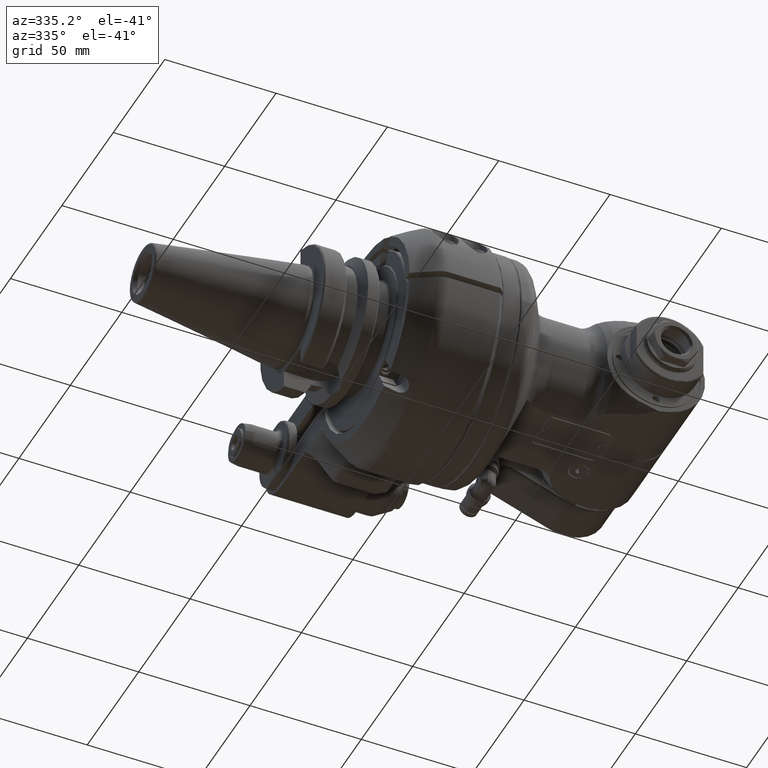
[diagram: clean part render]
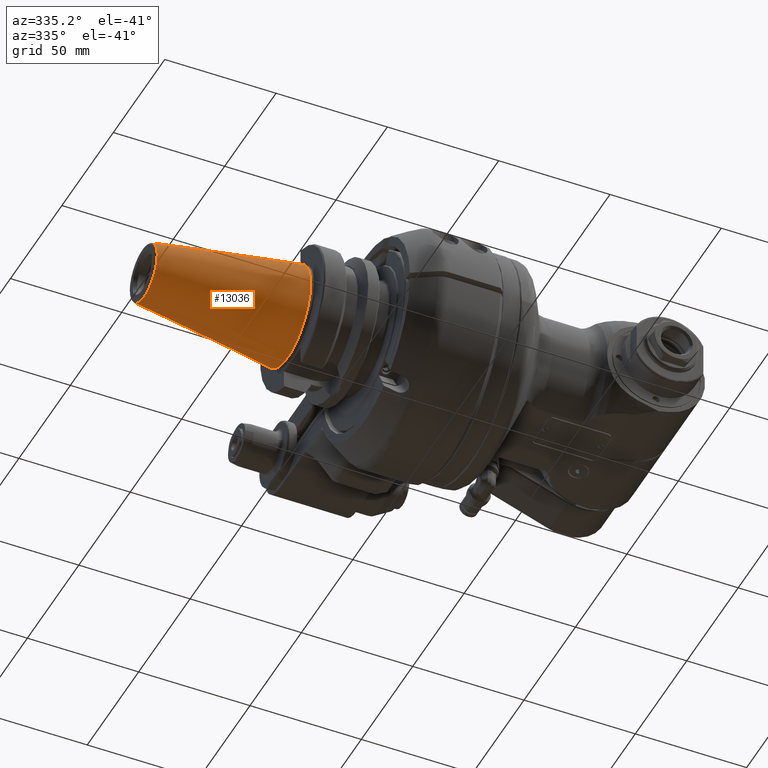
[diagram: same view with one face highlighted and labeled with its STEP entity id]
A machine part, auxiliary view. The second image highlights one B-rep face of the part: STEP entity #13036.
In plain terms, the highlighted conical surface has half-angle 8.297 deg.
Its self-contained STEP definition (entity closure, byte-faithful):
#783=CONICAL_SURFACE('',#14417,17.51864715413,0.144812411498922);
#1472=LINE('',#23628,#2325);
#2325=VECTOR('',#17676,17.51864715413);
#3338=FACE_OUTER_BOUND('',#4225,.T.);
#4225=EDGE_LOOP('',(#11264,#11265,#11266,#11267,#11268));
#4945=CIRCLE('',#14415,22.225);
#4946=CIRCLE('',#14416,22.225);
#4947=CIRCLE('',#14418,12.81229430825);
#6063=VERTEX_POINT('',#23621);
#6064=VERTEX_POINT('',#23622);
#6065=VERTEX_POINT('',#23627);
#7835=EDGE_CURVE('',#6063,#6064,#4945,.T.);
#7836=EDGE_CURVE('',#6064,#6063,#4946,.T.);
#7838=EDGE_CURVE('',#6064,#6065,#1472,.T.);
#7839=EDGE_CURVE('',#6065,#6065,#4947,.T.);
#11264=ORIENTED_EDGE('',*,*,#7835,.F.);
#11265=ORIENTED_EDGE('',*,*,#7836,.F.);
#11266=ORIENTED_EDGE('',*,*,#7838,.T.);
#11267=ORIENTED_EDGE('',*,*,#7839,.F.);
#11268=ORIENTED_EDGE('',*,*,#7838,.F.);
#13036=ADVANCED_FACE('',(#3338),#783,.T.);
#14415=AXIS2_PLACEMENT_3D('',#23623,#17669,#17670);
#14416=AXIS2_PLACEMENT_3D('',#23624,#17671,#17672);
#14417=AXIS2_PLACEMENT_3D('',#23626,#17674,#17675);
#14418=AXIS2_PLACEMENT_3D('',#23629,#17677,#17678);
#17669=DIRECTION('center_axis',(1.,0.,0.));
#17670=DIRECTION('ref_axis',(0.,1.,0.));
#17671=DIRECTION('center_axis',(1.,0.,0.));
#17672=DIRECTION('ref_axis',(0.,1.,0.));
#17674=DIRECTION('center_axis',(1.,0.,0.));
#17675=DIRECTION('ref_axis',(0.,-1.,0.));
#17676=DIRECTION('',(-0.98953299358046,-0.144306807239621,-1.76724869581176E-17));
#17677=DIRECTION('center_axis',(-1.,0.,0.));
#17678=DIRECTION('ref_axis',(0.,1.,0.));
#23621=CARTESIAN_POINT('',(-74.,-22.225,0.));
#23622=CARTESIAN_POINT('',(-74.0000000000006,22.225000000004,2.72177751110548E-15));
#23623=CARTESIAN_POINT('Origin',(-74.,0.,0.));
#23624=CARTESIAN_POINT('Origin',(-74.,0.,0.));
#23626=CARTESIAN_POINT('Origin',(-106.27215340362,0.,0.));
#23627=CARTESIAN_POINT('',(-138.5443068072,12.81229430825,0.));
#23628=CARTESIAN_POINT('',(-106.27215340362,17.51864715413,2.14541551626972E-15));
#23629=CARTESIAN_POINT('Origin',(-138.5443068072,0.,0.));